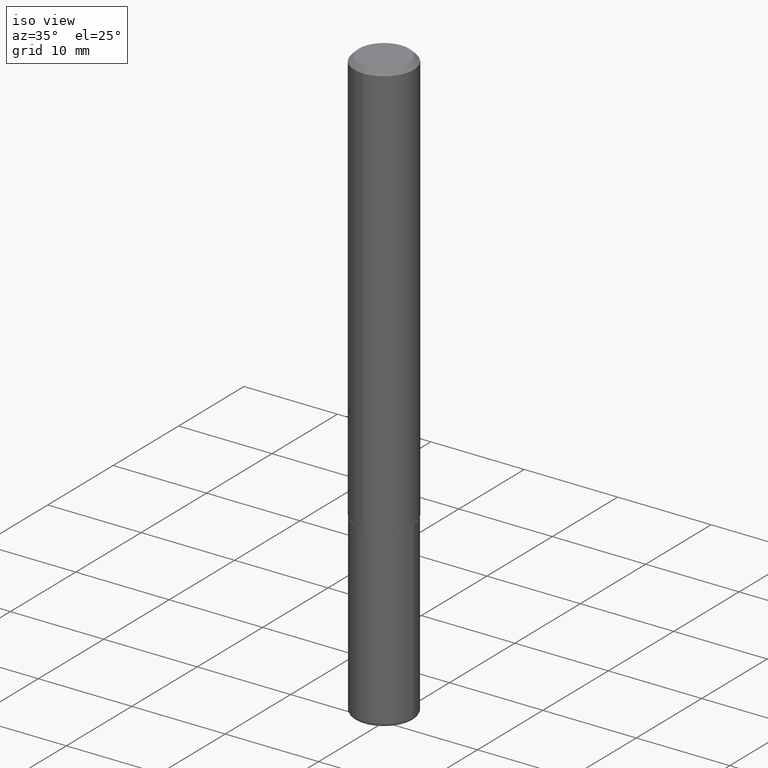
[diagram: clean part render]
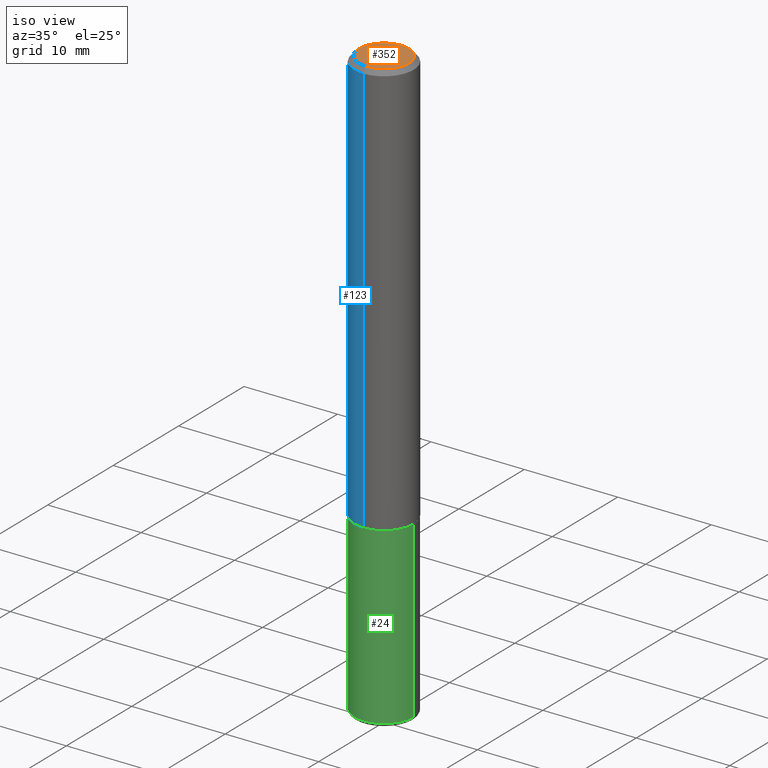
[diagram: same view with three faces highlighted in distinct colors, each labeled with its STEP entity id]
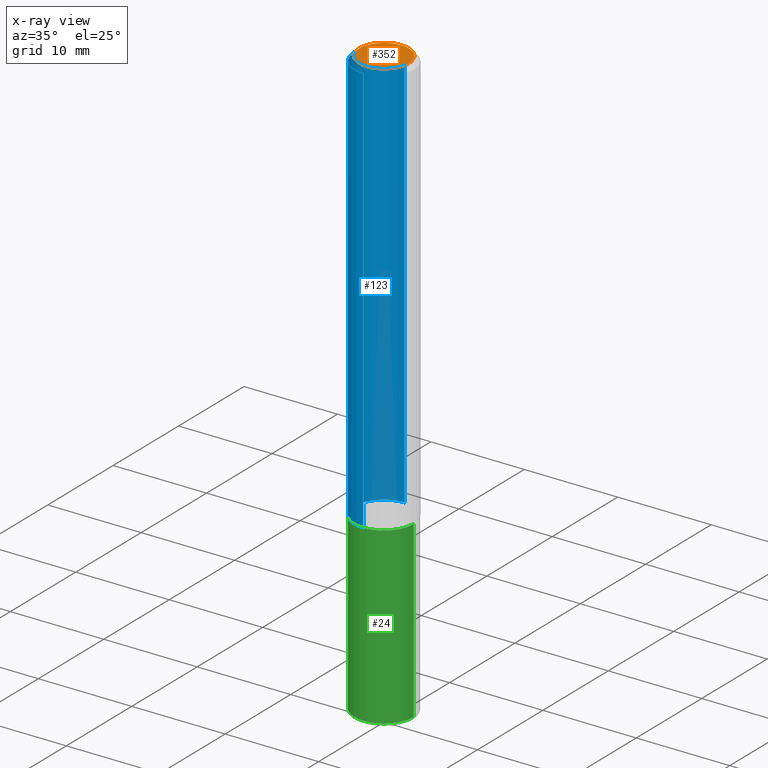
[diagram: x-ray of the same camera — body ghosted, the three highlighted faces saturated]
A machine part, iso view with three faces highlighted in distinct colors.
The next image is the same camera in x-ray (body ghosted, the three faces saturated) — at least one of them is partly hidden behind the body in this view.
Their STEP definitions:

[orange] entity #352 — the highlighted planar face has unit normal (0, -0, -1).
#8 = EDGE_CURVE ( 'NONE', #327, #274, #260, .T. ) ;
#11 = CARTESIAN_POINT ( 'NONE',  ( 2.501956864421970211E-45, -3.574177598218272952E-31, -1.023391667789888407E-16 ) ) ;
#18 = AXIS2_PLACEMENT_3D ( 'NONE', #11, #77, #206 ) ;
#77 = DIRECTION ( 'NONE',  ( -2.444769625519019670E-29, 3.492482605351917386E-15, 1.000000000000000000 ) ) ;
#79 = ORIENTED_EDGE ( 'NONE', *, *, #8, .T. ) ;
#92 = FACE_OUTER_BOUND ( 'NONE', #238, .T. ) ;
#93 = DIRECTION ( 'NONE',  ( -2.444769625519019670E-29, 3.492482605351917386E-15, 1.000000000000000000 ) ) ;
#101 = EDGE_CURVE ( 'NONE', #274, #327, #320, .T. ) ;
#128 = CARTESIAN_POINT ( 'NONE',  ( -7.889572697437263111E-16, -0.1050000000000001210, 2.643715067829629270E-16 ) ) ;
#153 = CARTESIAN_POINT ( 'NONE',  ( 2.501956864421970211E-45, -3.574177598218272952E-31, -1.023391667789888407E-16 ) ) ;
#159 = DIRECTION ( 'NONE',  ( 2.444769625519019109E-29, -3.492482605351917386E-15, -1.000000000000000000 ) ) ;
#168 = CARTESIAN_POINT ( 'NONE',  ( 8.030407079339212239E-16, 0.1050000000000001210, -4.690498403409406824E-16 ) ) ;
#180 = ORIENTED_EDGE ( 'NONE', *, *, #101, .T. ) ;
#192 = PLANE ( 'NONE',  #202 ) ;
#202 = AXIS2_PLACEMENT_3D ( 'NONE', #351, #159, #285 ) ;
#206 = DIRECTION ( 'NONE',  ( -6.982962677686265133E-15, -1.000000000000000000, 3.492482605351917386E-15 ) ) ;
#238 = EDGE_LOOP ( 'NONE', ( #180, #79 ) ) ;
#260 = CIRCLE ( 'NONE', #314, 0.1050000000000001210 ) ;
#274 = VERTEX_POINT ( 'NONE', #168 ) ;
#285 = DIRECTION ( 'NONE',  ( 6.982962677686265922E-15, 1.000000000000000000, -3.492482605351917386E-15 ) ) ;
#314 = AXIS2_PLACEMENT_3D ( 'NONE', #153, #93, #349 ) ;
#320 = CIRCLE ( 'NONE', #18, 0.1050000000000001210 ) ;
#327 = VERTEX_POINT ( 'NONE', #128 ) ;
#349 = DIRECTION ( 'NONE',  ( -6.982962677686265133E-15, -1.000000000000000000, 3.492482605351917386E-15 ) ) ;
#351 = CARTESIAN_POINT ( 'NONE',  ( 7.332110811570587146E-16, 0.1050000000000001210, -4.178802569514461450E-16 ) ) ;
#352 = ADVANCED_FACE ( 'NONE', ( #92 ), #192, .F. ) ;

[blue] entity #123 — the highlighted cylindrical surface (edge-blend (fillet) strip) has radius 3.175 mm, axis along (-0, 0, 1).
#15 = VERTEX_POINT ( 'NONE', #218 ) ;
#55 = CARTESIAN_POINT ( 'NONE',  ( 8.881784197001260212E-16, 0.1250000000000001110, -4.365603256689900677E-16 ) ) ;
#64 = AXIS2_PLACEMENT_3D ( 'NONE', #166, #203, #273 ) ;
#71 = CARTESIAN_POINT ( 'NONE',  ( -8.728703347107422194E-16, -0.1250000000000063560, -1.748999999999999222 ) ) ;
#82 = EDGE_CURVE ( 'NONE', #337, #398, #83, .T. ) ;
#83 = CIRCLE ( 'NONE', #332, 0.1250000000000000000 ) ;
#85 = ORIENTED_EDGE ( 'NONE', *, *, #155, .T. ) ;
#95 = CARTESIAN_POINT ( 'NONE',  ( 8.728703347107837333E-16, 0.1249999999999999306, -0.02000000000000046185 ) ) ;
#115 = VERTEX_POINT ( 'NONE', #71 ) ;
#123 = ADVANCED_FACE ( 'NONE', ( #365 ), #172, .T. ) ;
#141 = DIRECTION ( 'NONE',  ( -6.982962677686265133E-15, -1.000000000000000000, 4.370956789862812472E-15 ) ) ;
#155 = EDGE_CURVE ( 'NONE', #15, #115, #182, .T. ) ;
#161 = LINE ( 'NONE', #55, #287 ) ;
#166 = CARTESIAN_POINT ( 'NONE',  ( 0.000000000000000000, 0.000000000000000000, 0.000000000000000000 ) ) ;
#172 = CYLINDRICAL_SURFACE ( 'NONE', #64, 0.1250000000000001110 ) ;
#182 = CIRCLE ( 'NONE', #233, 0.1250000000000002498 ) ;
#198 = DIRECTION ( 'NONE',  ( -6.982962677686265922E-15, -1.000000000000000000, 3.483106191921935554E-15 ) ) ;
#203 = DIRECTION ( 'NONE',  ( -2.444769625519019670E-29, 3.492482605351917386E-15, 1.000000000000000000 ) ) ;
#218 = CARTESIAN_POINT ( 'NONE',  ( 8.881784197001479121E-16, 0.1249999999999941019, -1.749000000000000332 ) ) ;
#233 = AXIS2_PLACEMENT_3D ( 'NONE', #275, #298, #141 ) ;
#245 = EDGE_LOOP ( 'NONE', ( #267, #85, #393, #362 ) ) ;
#251 = LINE ( 'NONE', #378, #325 ) ;
#267 = ORIENTED_EDGE ( 'NONE', *, *, #324, .F. ) ;
#273 = DIRECTION ( 'NONE',  ( -6.982962677686266711E-15, -1.000000000000000000, 3.492482605351917386E-15 ) ) ;
#275 = CARTESIAN_POINT ( 'NONE',  ( 4.275902075032765006E-29, -6.108352076760502035E-15, -1.748999999999999888 ) ) ;
#287 = VECTOR ( 'NONE', #410, 39.37007874015748143 ) ;
#289 = DIRECTION ( 'NONE',  ( -2.444769625519019670E-29, 3.492482605351917386E-15, 1.000000000000000000 ) ) ;
#290 = CARTESIAN_POINT ( 'NONE',  ( -8.575622497214408537E-16, -0.1250000000000000555, -0.01999999999999959102 ) ) ;
#298 = DIRECTION ( 'NONE',  ( -2.444769625519019670E-29, 3.492482605351917386E-15, 1.000000000000000000 ) ) ;
#324 = EDGE_CURVE ( 'NONE', #15, #337, #161, .T. ) ;
#325 = VECTOR ( 'NONE', #414, 39.37007874015748143 ) ;
#332 = AXIS2_PLACEMENT_3D ( 'NONE', #409, #289, #198 ) ;
#337 = VERTEX_POINT ( 'NONE', #95 ) ;
#345 = EDGE_CURVE ( 'NONE', #115, #398, #251, .T. ) ;
#362 = ORIENTED_EDGE ( 'NONE', *, *, #82, .F. ) ;
#365 = FACE_OUTER_BOUND ( 'NONE', #245, .T. ) ;
#378 = CARTESIAN_POINT ( 'NONE',  ( -8.728703347107841277E-16, -0.1250000000000001110, 4.365603256689900677E-16 ) ) ;
#393 = ORIENTED_EDGE ( 'NONE', *, *, #345, .T. ) ;
#398 = VERTEX_POINT ( 'NONE', #290 ) ;
#409 = CARTESIAN_POINT ( 'NONE',  ( 4.889539251038044560E-31, -6.984965210703842315E-17, -0.02000000000000002470 ) ) ;
#410 = DIRECTION ( 'NONE',  ( -2.444769625519019670E-29, 3.492482605351917386E-15, 1.000000000000000000 ) ) ;
#414 = DIRECTION ( 'NONE',  ( -2.444769625519019670E-29, 3.492482605351917386E-15, 1.000000000000000000 ) ) ;

[green] entity #24 — the highlighted cylindrical surface (edge-blend (fillet) strip) has radius 3.175 mm, axis along (-0, 0, 1).
#19 = CARTESIAN_POINT ( 'NONE',  ( 4.279570410823989044E-29, -6.110092342975505460E-15, -1.750000000000000222 ) ) ;
#24 = ADVANCED_FACE ( 'NONE', ( #249 ), #89, .T. ) ;
#32 = DIRECTION ( 'NONE',  ( -2.445468806185136597E-29, 3.491481338843145583E-15, 1.000000000000000000 ) ) ;
#44 = VERTEX_POINT ( 'NONE', #150 ) ;
#48 = VERTEX_POINT ( 'NONE', #87 ) ;
#52 = DIRECTION ( 'NONE',  ( -2.445468806185136597E-29, 3.491481338843145583E-15, 1.000000000000000000 ) ) ;
#53 = VERTEX_POINT ( 'NONE', #376 ) ;
#57 = VECTOR ( 'NONE', #205, 39.37007874015748143 ) ;
#58 = EDGE_CURVE ( 'NONE', #44, #212, #387, .T. ) ;
#87 = CARTESIAN_POINT ( 'NONE',  ( -0.1250000000000001943, -7.788152707325089870E-15, -2.484999999999999876 ) ) ;
#89 = CYLINDRICAL_SURFACE ( 'NONE', #97, 0.1250000000000000000 ) ;
#97 = AXIS2_PLACEMENT_3D ( 'NONE', #122, #52, #189 ) ;
#104 = CARTESIAN_POINT ( 'NONE',  ( 0.1250000000000000000, -8.728703347107833388E-16, 6.095220969744919741E-30 ) ) ;
#106 = ORIENTED_EDGE ( 'NONE', *, *, #385, .T. ) ;
#122 = CARTESIAN_POINT ( 'NONE',  ( 0.000000000000000000, 0.000000000000000000, 0.000000000000000000 ) ) ;
#137 = EDGE_LOOP ( 'NONE', ( #173, #296, #106, #304 ) ) ;
#139 = VECTOR ( 'NONE', #399, 39.37007874015748143 ) ;
#150 = CARTESIAN_POINT ( 'NONE',  ( -0.1250000000000000000, -6.505033315300235838E-15, -1.750000000000000222 ) ) ;
#158 = DIRECTION ( 'NONE',  ( 1.000000000000000000, -6.982962677686271444E-15, 0.000000000000000000 ) ) ;
#173 = ORIENTED_EDGE ( 'NONE', *, *, #179, .F. ) ;
#179 = EDGE_CURVE ( 'NONE', #48, #44, #401, .T. ) ;
#189 = DIRECTION ( 'NONE',  ( 1.000000000000000000, -6.982962677686266711E-15, 4.876176775795935793E-29 ) ) ;
#205 = DIRECTION ( 'NONE',  ( -2.445468806185136877E-29, 3.491481338843145188E-15, 1.000000000000000000 ) ) ;
#211 = CARTESIAN_POINT ( 'NONE',  ( 0.1250000000000000000, -6.982962677686288010E-15, -1.750000000000000222 ) ) ;
#212 = VERTEX_POINT ( 'NONE', #211 ) ;
#220 = DIRECTION ( 'NONE',  ( -2.445468806185136597E-29, 3.491481338843145583E-15, 1.000000000000000000 ) ) ;
#249 = FACE_OUTER_BOUND ( 'NONE', #137, .T. ) ;
#269 = CARTESIAN_POINT ( 'NONE',  ( -0.1250000000000000000, 8.881784197001252323E-16, -6.148668862818632227E-30 ) ) ;
#280 = DIRECTION ( 'NONE',  ( 1.000000000000000000, -6.982962677686262766E-15, 0.000000000000000000 ) ) ;
#291 = AXIS2_PLACEMENT_3D ( 'NONE', #19, #220, #280 ) ;
#296 = ORIENTED_EDGE ( 'NONE', *, *, #329, .T. ) ;
#304 = ORIENTED_EDGE ( 'NONE', *, *, #58, .F. ) ;
#310 = CIRCLE ( 'NONE', #334, 0.1249999999999999861 ) ;
#315 = CARTESIAN_POINT ( 'NONE',  ( 6.076989983370064174E-29, -8.676331127025216680E-15, -2.484999999999999876 ) ) ;
#329 = EDGE_CURVE ( 'NONE', #48, #53, #310, .T. ) ;
#334 = AXIS2_PLACEMENT_3D ( 'NONE', #315, #32, #158 ) ;
#376 = CARTESIAN_POINT ( 'NONE',  ( 0.1250000000000001943, -9.549201461736000019E-15, -2.484999999999999876 ) ) ;
#385 = EDGE_CURVE ( 'NONE', #53, #212, #392, .T. ) ;
#387 = CIRCLE ( 'NONE', #291, 0.1250000000000000000 ) ;
#392 = LINE ( 'NONE', #104, #57 ) ;
#399 = DIRECTION ( 'NONE',  ( -2.445468806185136877E-29, 3.491481338843145188E-15, 1.000000000000000000 ) ) ;
#401 = LINE ( 'NONE', #269, #139 ) ;